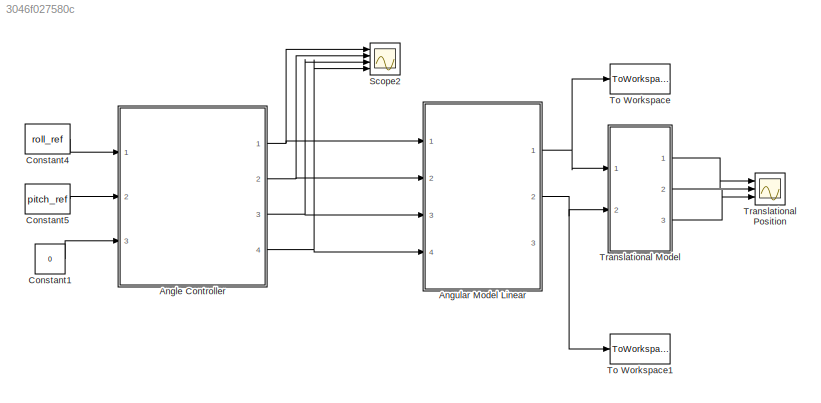
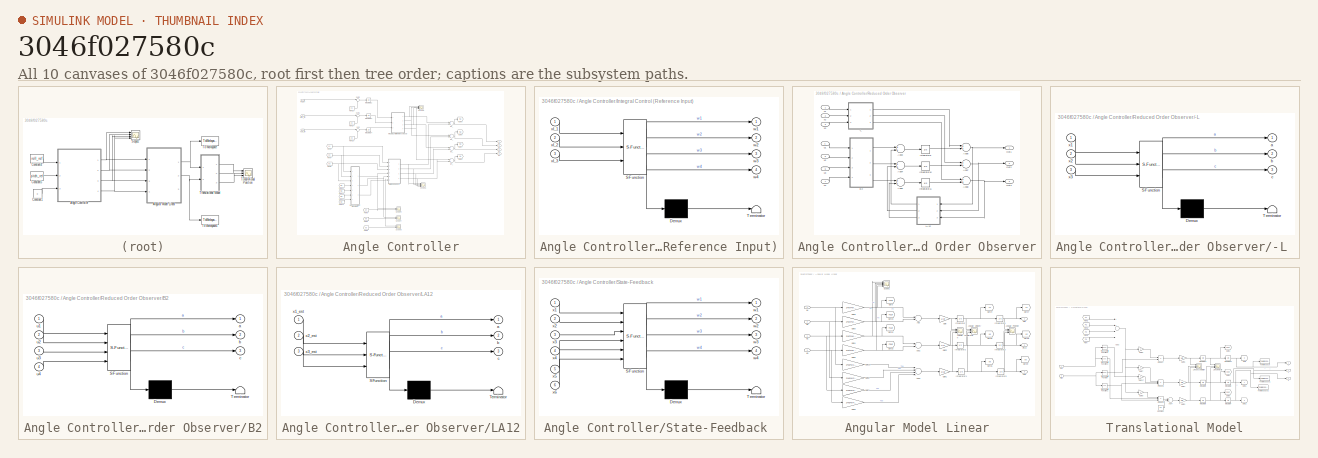
[diagram: thumbnail index - all 10 canvases of the model, root first then tree order]
MODEL slx_3046f027580c
KIND model
CONFIG AbsTol = auto
CONFIG FixedStep = auto
CONFIG MaxStep = auto
CONFIG MinStep = auto
CONFIG RelTol = 1e-3
CONFIG SampleTimeConstraint = Unconstrained
CONFIG Solver = VariableStepAuto
CONFIG SolverMode = Auto
CONFIG SolverName = VariableStepAuto
CONFIG StartTime = 0.0
CONFIG StopTime = 10
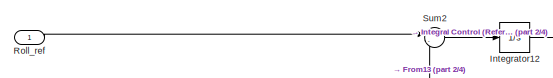
[diagram: Angle Controller - part 1/4, top left region]
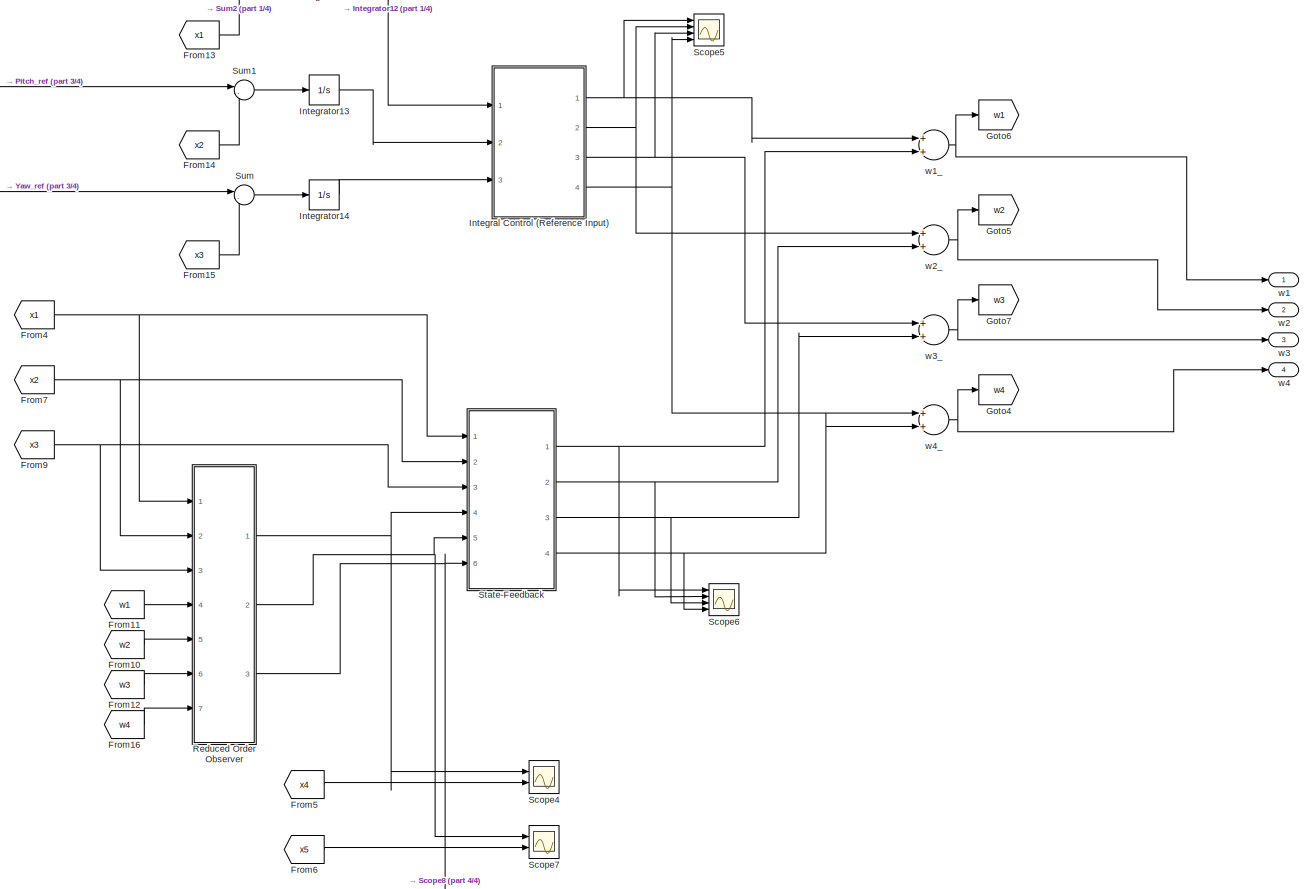
[diagram: Angle Controller - part 2/4, most of the canvas]
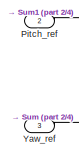
[diagram: Angle Controller - part 3/4, top left region]
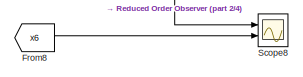
[diagram: Angle Controller - part 4/4, bottom center region]
BLOCK [SubSystem] Angle Controller
  Ports = [3, 4]
  RequestExecContextInheritance = off
  Variant = off
BLOCK [From] Angle Controller/From10
  GotoTag = w2
BLOCK [From] Angle Controller/From11
  GotoTag = w1
BLOCK [From] Angle Controller/From12
  GotoTag = w3
BLOCK [From] Angle Controller/From13
  GotoTag = x1
  TagVisibility = global
BLOCK [From] Angle Controller/From14
  GotoTag = x2
  TagVisibility = global
BLOCK [From] Angle Controller/From15
  GotoTag = x3
  TagVisibility = global
BLOCK [From] Angle Controller/From16
  GotoTag = w4
BLOCK [From] Angle Controller/From4
  GotoTag = x1
  TagVisibility = global
BLOCK [From] Angle Controller/From5
  GotoTag = x4
  TagVisibility = global
BLOCK [From] Angle Controller/From6
  GotoTag = x5
  TagVisibility = global
BLOCK [From] Angle Controller/From7
  GotoTag = x2
  TagVisibility = global
BLOCK [From] Angle Controller/From8
  GotoTag = x6
  TagVisibility = global
BLOCK [From] Angle Controller/From9
  GotoTag = x3
  TagVisibility = global
BLOCK [Goto] Angle Controller/Goto4
  GotoTag = w4
BLOCK [Goto] Angle Controller/Goto5
  GotoTag = w2
BLOCK [Goto] Angle Controller/Goto6
  GotoTag = w1
BLOCK [Goto] Angle Controller/Goto7
  GotoTag = w3
BLOCK [SubSystem] Angle Controller/Integral Control (Reference Input)
  ErrorFcn = Stateflow.Translate.translate
  PermitHierarchicalResolution = ExplicitOnly
  Ports = [3, 4]
  RequestExecContextInheritance = off
  SFBlockType = MATLAB Function
  TreatAsAtomicUnit = on
  Variant = off
BLOCK [Demux] Angle Controller/Integral Control (Reference Input)/ Demux 
  Outputs = 1
  Ports = [1, 1]
BLOCK [S-Function] Angle Controller/Integral Control (Reference Input)/ SFunction 
  EnableBusSupport = on
  FunctionName = sf_sfun
  Parameters = FI
  PortCounts = [3 5]
  Ports = [3, 5]
  SFunctionDeploymentMode = off
  Tag = Stateflow S-Function attitudeControllerSim 2
BLOCK [Terminator] Angle Controller/Integral Control (Reference Input)/ Terminator 
BLOCK [Outport] Angle Controller/Integral Control (Reference Input)/w1
  IconDisplay = Port number
BLOCK [Outport] Angle Controller/Integral Control (Reference Input)/w2
  IconDisplay = Port number
  Port = 2
BLOCK [Outport] Angle Controller/Integral Control (Reference Input)/w3
  IconDisplay = Port number
  Port = 3
BLOCK [Outport] Angle Controller/Integral Control (Reference Input)/w4
  IconDisplay = Port number
  Port = 4
BLOCK [Inport] Angle Controller/Integral Control (Reference Input)/xI_1
  IconDisplay = Port number
BLOCK [Inport] Angle Controller/Integral Control (Reference Input)/xI_2
  IconDisplay = Port number
  Port = 2
BLOCK [Inport] Angle Controller/Integral Control (Reference Input)/xI_3
  IconDisplay = Port number
  Port = 3
BLOCK [Integrator] Angle Controller/Integrator12
  Ports = [1, 1]
BLOCK [Integrator] Angle Controller/Integrator13
  Ports = [1, 1]
BLOCK [Integrator] Angle Controller/Integrator14
  Ports = [1, 1]
BLOCK [Inport] Angle Controller/Pitch_ref
  IconDisplay = Port number
  Port = 2
BLOCK [SubSystem] Angle Controller/Reduced Order Observer
  Ports = [7, 3]
  RequestExecContextInheritance = off
  Variant = off
BLOCK [SubSystem] Angle Controller/Reduced Order Observer/-L 
  ErrorFcn = Stateflow.Translate.translate
  PermitHierarchicalResolution = ExplicitOnly
  Ports = [3, 3]
  RequestExecContextInheritance = off
  SFBlockType = MATLAB Function
  TreatAsAtomicUnit = on
  Variant = off
BLOCK [Demux] Angle Controller/Reduced Order Observer/-L / Demux 
  Outputs = 1
  Ports = [1, 1]
BLOCK [S-Function] Angle Controller/Reduced Order Observer/-L / SFunction 
  EnableBusSupport = on
  FunctionName = sf_sfun
  Parameters = Lobs
  PortCounts = [3 4]
  Ports = [3, 4]
  SFunctionDeploymentMode = off
  Tag = Stateflow S-Function attitudeControllerSim 3
BLOCK [Terminator] Angle Controller/Reduced Order Observer/-L / Terminator 
BLOCK [Outport] Angle Controller/Reduced Order Observer/-L /a
  IconDisplay = Port number
BLOCK [Outport] Angle Controller/Reduced Order Observer/-L /b
  IconDisplay = Port number
  Port = 2
BLOCK [Outport] Angle Controller/Reduced Order Observer/-L /c
  IconDisplay = Port number
  Port = 3
BLOCK [Inport] Angle Controller/Reduced Order Observer/-L /x1
  IconDisplay = Port number
BLOCK [Inport] Angle Controller/Reduced Order Observer/-L /x2
  IconDisplay = Port number
  Port = 2
BLOCK [Inport] Angle Controller/Reduced Order Observer/-L /x3
  IconDisplay = Port number
  Port = 3
BLOCK [Sum] Angle Controller/Reduced Order Observer/Add3
  InputSameDT = off
  Inputs = 2
  OutDataTypeStr = Inherit: Inherit via internal rule
  Ports = [2, 1]
  SaturateOnIntegerOverflow = off
BLOCK [Sum] Angle Controller/Reduced Order Observer/Add4
  InputSameDT = off
  Inputs = 2
  OutDataTypeStr = Inherit: Inherit via internal rule
  Ports = [2, 1]
  SaturateOnIntegerOverflow = off
BLOCK [Sum] Angle Controller/Reduced Order Observer/Add5
  InputSameDT = off
  Inputs = 2
  OutDataTypeStr = Inherit: Inherit via internal rule
  Ports = [2, 1]
  SaturateOnIntegerOverflow = off
BLOCK [Sum] Angle Controller/Reduced Order Observer/Add6
  InputSameDT = off
  Inputs = 2
  OutDataTypeStr = Inherit: Inherit via internal rule
  Ports = [2, 1]
  SaturateOnIntegerOverflow = off
BLOCK [Sum] Angle Controller/Reduced Order Observer/Add7
  InputSameDT = off
  Inputs = 2
  OutDataTypeStr = Inherit: Inherit via internal rule
  Ports = [2, 1]
  SaturateOnIntegerOverflow = off
BLOCK [Sum] Angle Controller/Reduced Order Observer/Add8
  InputSameDT = off
  Inputs = 2
  OutDataTypeStr = Inherit: Inherit via internal rule
  Ports = [2, 1]
  SaturateOnIntegerOverflow = off
BLOCK [SubSystem] Angle Controller/Reduced Order Observer/B2
  ErrorFcn = Stateflow.Translate.translate
  PermitHierarchicalResolution = ExplicitOnly
  Ports = [4, 3]
  RequestExecContextInheritance = off
  SFBlockType = MATLAB Function
  TreatAsAtomicUnit = on
  Variant = off
BLOCK [Demux] Angle Controller/Reduced Order Observer/B2/ Demux 
  Outputs = 1
  Ports = [1, 1]
BLOCK [S-Function] Angle Controller/Reduced Order Observer/B2/ SFunction 
  EnableBusSupport = on
  FunctionName = sf_sfun
  Parameters = B2
  PortCounts = [4 4]
  Ports = [4, 4]
  SFunctionDeploymentMode = off
  Tag = Stateflow S-Function attitudeControllerSim 4
BLOCK [Terminator] Angle Controller/Reduced Order Observer/B2/ Terminator 
BLOCK [Outport] Angle Controller/Reduced Order Observer/B2/a
  IconDisplay = Port number
BLOCK [Outport] Angle Controller/Reduced Order Observer/B2/b
  IconDisplay = Port number
  Port = 2
BLOCK [Outport] Angle Controller/Reduced Order Observer/B2/c
  IconDisplay = Port number
  Port = 3
BLOCK [Inport] Angle Controller/Reduced Order Observer/B2/u1
  IconDisplay = Port number
BLOCK [Inport] Angle Controller/Reduced Order Observer/B2/u2
  IconDisplay = Port number
  Port = 2
BLOCK [Inport] Angle Controller/Reduced Order Observer/B2/u3
  IconDisplay = Port number
  Port = 3
BLOCK [Inport] Angle Controller/Reduced Order Observer/B2/u4
  IconDisplay = Port number
  Port = 4
BLOCK [Integrator] Angle Controller/Reduced Order Observer/Integrator10
  Ports = [1, 1]
BLOCK [Integrator] Angle Controller/Reduced Order Observer/Integrator11
  Ports = [1, 1]
BLOCK [Integrator] Angle Controller/Reduced Order Observer/Integrator9
  Ports = [1, 1]
BLOCK [SubSystem] Angle Controller/Reduced Order Observer/LA12
  ErrorFcn = Stateflow.Translate.translate
  PermitHierarchicalResolution = ExplicitOnly
  Ports = [3, 3]
  RequestExecContextInheritance = off
  SFBlockType = MATLAB Function
  TreatAsAtomicUnit = on
  Variant = off
BLOCK [Demux] Angle Controller/Reduced Order Observer/LA12/ Demux 
  Outputs = 1
  Ports = [1, 1]
BLOCK [S-Function] Angle Controller/Reduced Order Observer/LA12/ SFunction 
  EnableBusSupport = on
  FunctionName = sf_sfun
  Parameters = A12,Lobs
  PortCounts = [3 4]
  Ports = [3, 4]
  SFunctionDeploymentMode = off
  Tag = Stateflow S-Function attitudeControllerSim 5
BLOCK [Terminator] Angle Controller/Reduced Order Observer/LA12/ Terminator 
BLOCK [Outport] Angle Controller/Reduced Order Observer/LA12/a
  IconDisplay = Port number
BLOCK [Outport] Angle Controller/Reduced Order Observer/LA12/b
  IconDisplay = Port number
  Port = 2
BLOCK [Outport] Angle Controller/Reduced Order Observer/LA12/c
  IconDisplay = Port number
  Port = 3
BLOCK [Inport] Angle Controller/Reduced Order Observer/LA12/x1_est
  IconDisplay = Port number
BLOCK [Inport] Angle Controller/Reduced Order Observer/LA12/x2_est
  IconDisplay = Port number
  Port = 2
BLOCK [Inport] Angle Controller/Reduced Order Observer/LA12/x3_est
  IconDisplay = Port number
  Port = 3
BLOCK [Outport] Angle Controller/Reduced Order Observer/Out1
  IconDisplay = Port number
BLOCK [Outport] Angle Controller/Reduced Order Observer/Out2
  IconDisplay = Port number
  Port = 2
BLOCK [Outport] Angle Controller/Reduced Order Observer/Out3
  IconDisplay = Port number
  Port = 3
BLOCK [Inport] Angle Controller/Reduced Order Observer/u1
  IconDisplay = Port number
  Port = 4
BLOCK [Inport] Angle Controller/Reduced Order Observer/u2
  IconDisplay = Port number
  Port = 5
BLOCK [Inport] Angle Controller/Reduced Order Observer/u3
  IconDisplay = Port number
  Port = 6
BLOCK [Inport] Angle Controller/Reduced Order Observer/u4
  IconDisplay = Port number
  Port = 7
BLOCK [Inport] Angle Controller/Reduced Order Observer/x1
  IconDisplay = Port number
BLOCK [Inport] Angle Controller/Reduced Order Observer/x2
  IconDisplay = Port number
  Port = 2
BLOCK [Inport] Angle Controller/Reduced Order Observer/x3
  IconDisplay = Port number
  Port = 3
BLOCK [Inport] Angle Controller/Roll_ref
  IconDisplay = Port number
BLOCK [Scope] Angle Controller/Scope4
  NumInputPorts = 2
  Ports = [2]
  ScopeSpecificationString = Simulink.scopes.TimeScopeBlockCfg('CurrentConfiguration', extmgr.ConfigurationSet(extmgr.Configuration('Core','General UI',true),extmgr.Configuration('Core','Source UI',true),extmgr.Configuration('Sources','WiredSimulink',true,'DataLoggingVariableName','ScopeData7'),extmgr.Configuration('Visuals','Time Domain',true,'SerializedDisplays',{struct('MinYLimReal','-0.08424','MaxYLimReal','0.75814','YLab...<+1421ch>
BLOCK [Scope] Angle Controller/Scope5
  NumInputPorts = 4
  Ports = [4]
  ScopeSpecificationString = Simulink.scopes.TimeScopeBlockCfg('CurrentConfiguration', extmgr.ConfigurationSet(extmgr.Configuration('Core','General UI',true),extmgr.Configuration('Core','Source UI',true),extmgr.Configuration('Sources','WiredSimulink',true,'DataLoggingVariableName','ScopeData8'),extmgr.Configuration('Visuals','Time Domain',true,'SerializedDisplays',{struct('MinYLimReal','-1.00000','MaxYLimReal','1.00000','YLab...<+1572ch>
BLOCK [Scope] Angle Controller/Scope6
  NumInputPorts = 4
  Ports = [4]
  ScopeSpecificationString = C++SS(StrPVP('SaveName','ScopeData9'),StrPVP('LimitDataPoints','on'),StrPVP('DataFormat','Array'),StrPVP('Decimation','1'),StrPVP('BlockParamSampleInput','off'))
BLOCK [Scope] Angle Controller/Scope7
  NumInputPorts = 2
  Ports = [2]
  ScopeSpecificationString = C++SS(StrPVP('SaveName','ScopeData10'),StrPVP('LimitDataPoints','on'),StrPVP('DataFormat','Array'),StrPVP('Decimation','1'),StrPVP('BlockParamSampleInput','off'))
BLOCK [Scope] Angle Controller/Scope8
  NumInputPorts = 2
  Ports = [2]
  ScopeSpecificationString = C++SS(StrPVP('SaveName','ScopeData11'),StrPVP('LimitDataPoints','on'),StrPVP('DataFormat','Array'),StrPVP('Decimation','1'),StrPVP('BlockParamSampleInput','off'))
BLOCK [SubSystem] Angle Controller/State-Feedback 
  ErrorFcn = Stateflow.Translate.translate
  PermitHierarchicalResolution = ExplicitOnly
  Ports = [6, 4]
  RequestExecContextInheritance = off
  SFBlockType = MATLAB Function
  TreatAsAtomicUnit = on
  Variant = off
BLOCK [Demux] Angle Controller/State-Feedback / Demux 
  Outputs = 1
  Ports = [1, 1]
BLOCK [S-Function] Angle Controller/State-Feedback / SFunction 
  EnableBusSupport = on
  FunctionName = sf_sfun
  Parameters = F
  PortCounts = [6 5]
  Ports = [6, 5]
  SFunctionDeploymentMode = off
  Tag = Stateflow S-Function attitudeControllerSim 1
BLOCK [Terminator] Angle Controller/State-Feedback / Terminator 
BLOCK [Outport] Angle Controller/State-Feedback /w1
  IconDisplay = Port number
BLOCK [Outport] Angle Controller/State-Feedback /w2
  IconDisplay = Port number
  Port = 2
BLOCK [Outport] Angle Controller/State-Feedback /w3
  IconDisplay = Port number
  Port = 3
BLOCK [Outport] Angle Controller/State-Feedback /w4
  IconDisplay = Port number
  Port = 4
BLOCK [Inport] Angle Controller/State-Feedback /x1
  IconDisplay = Port number
BLOCK [Inport] Angle Controller/State-Feedback /x2
  IconDisplay = Port number
  Port = 2
BLOCK [Inport] Angle Controller/State-Feedback /x3
  IconDisplay = Port number
  Port = 3
BLOCK [Inport] Angle Controller/State-Feedback /x4
  IconDisplay = Port number
  Port = 4
BLOCK [Inport] Angle Controller/State-Feedback /x5
  IconDisplay = Port number
  Port = 5
BLOCK [Inport] Angle Controller/State-Feedback /x6
  IconDisplay = Port number
  Port = 6
BLOCK [Sum] Angle Controller/Sum
  IconShape = round
  InputSameDT = off
  Inputs = |-+
  OutDataTypeStr = Inherit: Inherit via internal rule
  Ports = [2, 1]
  SaturateOnIntegerOverflow = off
BLOCK [Sum] Angle Controller/Sum1
  IconShape = round
  InputSameDT = off
  Inputs = |-+
  OutDataTypeStr = Inherit: Inherit via internal rule
  Ports = [2, 1]
  SaturateOnIntegerOverflow = off
BLOCK [Sum] Angle Controller/Sum2
  IconShape = round
  InputSameDT = off
  Inputs = |-+
  OutDataTypeStr = Inherit: Inherit via internal rule
  Ports = [2, 1]
  SaturateOnIntegerOverflow = off
BLOCK [Inport] Angle Controller/Yaw_ref
  IconDisplay = Port number
  Port = 3
BLOCK [Outport] Angle Controller/w1
  IconDisplay = Port number
BLOCK [Sum] Angle Controller/w1_
  InputSameDT = off
  OutDataTypeStr = Inherit: Inherit via internal rule
  Ports = [2, 1]
  SaturateOnIntegerOverflow = off
BLOCK [Outport] Angle Controller/w2
  IconDisplay = Port number
  Port = 2
BLOCK [Sum] Angle Controller/w2_
  InputSameDT = off
  OutDataTypeStr = Inherit: Inherit via internal rule
  Ports = [2, 1]
  SaturateOnIntegerOverflow = off
BLOCK [Outport] Angle Controller/w3
  IconDisplay = Port number
  Port = 3
BLOCK [Sum] Angle Controller/w3_
  InputSameDT = off
  OutDataTypeStr = Inherit: Inherit via internal rule
  Ports = [2, 1]
  SaturateOnIntegerOverflow = off
BLOCK [Outport] Angle Controller/w4
  IconDisplay = Port number
  Port = 4
BLOCK [Sum] Angle Controller/w4_
  InputSameDT = off
  OutDataTypeStr = Inherit: Inherit via internal rule
  Ports = [2, 1]
  SaturateOnIntegerOverflow = off
BLOCK [SubSystem] Angular Model Linear
  Ports = [4, 3]
  RequestExecContextInheritance = off
  Variant = off
BLOCK [Sum] Angular Model Linear/Add
  InputSameDT = off
  Inputs = +-
  OutDataTypeStr = Inherit: Inherit via internal rule
  Ports = [2, 1]
  SaturateOnIntegerOverflow = off
BLOCK [Sum] Angular Model Linear/Add1
  InputSameDT = off
  Inputs = +-
  OutDataTypeStr = Inherit: Inherit via internal rule
  Ports = [2, 1]
  SaturateOnIntegerOverflow = off
BLOCK [Sum] Angular Model Linear/Add2
  InputSameDT = off
  Inputs = --++
  OutDataTypeStr = Inherit: Inherit via internal rule
  Ports = [4, 1]
  SaturateOnIntegerOverflow = off
BLOCK [Scope] Angular Model Linear/Angular Acceleration
  NumInputPorts = 3
  Ports = [3]
  ScopeSpecificationString = Simulink.scopes.TimeScopeBlockCfg('CurrentConfiguration', extmgr.ConfigurationSet(extmgr.Configuration('Core','General UI',true),extmgr.Configuration('Core','Source UI',true),extmgr.Configuration('Sources','WiredSimulink',true,'DataLoggingVariableName','ScopeData3','DataLoggingLimitDataPoints',true,'DataLoggingSaveFormat','Array','DataLoggingDecimation','1','DataLoggingDecimateData',true),extmgr.C...<+1531ch>
BLOCK [Scope] Angular Model Linear/Angular Position
  NumInputPorts = 3
  Ports = [3]
  ScopeSpecificationString = Simulink.scopes.TimeScopeBlockCfg('CurrentConfiguration', extmgr.ConfigurationSet(extmgr.Configuration('Core','General UI',true),extmgr.Configuration('Core','Source UI',true),extmgr.Configuration('Sources','WiredSimulink',true,'DataLoggingVariableName','ScopeData1'),extmgr.Configuration('Visuals','Time Domain',true,'SerializedDisplays',{struct('MinYLimReal','-0.12626','MaxYLimReal','1.12514','YLab...<+1442ch>
BLOCK [Scope] Angular Model Linear/Angular Velocity
  NumInputPorts = 3
  Ports = [3]
  ScopeSpecificationString = Simulink.scopes.TimeScopeBlockCfg('CurrentConfiguration', extmgr.ConfigurationSet(extmgr.Configuration('Core','General UI',true),extmgr.Configuration('Core','Source UI',true),extmgr.Configuration('Sources','WiredSimulink',true,'DataLoggingVariableName','ScopeData2','DataLoggingLimitDataPoints',true,'DataLoggingSaveFormat','Array','DataLoggingDecimation','1','DataLoggingDecimateData',true),extmgr.C...<+1624ch>
BLOCK [Gain] Angular Model Linear/Gain
  Gain = L/Jx
  OutDataTypeStr = Inherit: Inherit via internal rule
  ParamDataTypeStr = Inherit: Inherit via internal rule
  SaturateOnIntegerOverflow = off
BLOCK [Gain] Angular Model Linear/Gain1
  Gain = 1/Jz
  OutDataTypeStr = Inherit: Inherit via internal rule
  ParamDataTypeStr = Inherit: Inherit via internal rule
  SaturateOnIntegerOverflow = off
BLOCK [Gain] Angular Model Linear/Gain10
  Gain = 2*kd*w1_bar
  OutDataTypeStr = Inherit: Inherit via internal rule
  ParamDataTypeStr = Inherit: Inherit via internal rule
  SaturateOnIntegerOverflow = off
BLOCK [Gain] Angular Model Linear/Gain2
  Gain = L/Jy
  OutDataTypeStr = Inherit: Inherit via internal rule
  ParamDataTypeStr = Inherit: Inherit via internal rule
  SaturateOnIntegerOverflow = off
BLOCK [Gain] Angular Model Linear/Gain3
  Gain = 2*kth*w2_bar
  OutDataTypeStr = Inherit: Inherit via internal rule
  ParamDataTypeStr = Inherit: Inherit via internal rule
  SaturateOnIntegerOverflow = off
BLOCK [Gain] Angular Model Linear/Gain4
  Gain = 2*kth*w1_bar
  OutDataTypeStr = Inherit: Inherit via internal rule
  ParamDataTypeStr = Inherit: Inherit via internal rule
  SaturateOnIntegerOverflow = off
BLOCK [Gain] Angular Model Linear/Gain5
  Gain = 2*kth*w3_bar
  OutDataTypeStr = Inherit: Inherit via internal rule
  ParamDataTypeStr = Inherit: Inherit via internal rule
  SaturateOnIntegerOverflow = off
BLOCK [Gain] Angular Model Linear/Gain6
  Gain = 2*kd*w2_bar
  OutDataTypeStr = Inherit: Inherit via internal rule
  ParamDataTypeStr = Inherit: Inherit via internal rule
  SaturateOnIntegerOverflow = off
BLOCK [Gain] Angular Model Linear/Gain7
  Gain = 2*kd*w3_bar
  OutDataTypeStr = Inherit: Inherit via internal rule
  ParamDataTypeStr = Inherit: Inherit via internal rule
  SaturateOnIntegerOverflow = off
BLOCK [Gain] Angular Model Linear/Gain8
  Gain = 2*kd*w4_bar
  OutDataTypeStr = Inherit: Inherit via internal rule
  ParamDataTypeStr = Inherit: Inherit via internal rule
  SaturateOnIntegerOverflow = off
BLOCK [Gain] Angular Model Linear/Gain9
  Gain = 2*kth*w4_bar
  OutDataTypeStr = Inherit: Inherit via internal rule
  ParamDataTypeStr = Inherit: Inherit via internal rule
  SaturateOnIntegerOverflow = off
BLOCK [Goto] Angular Model Linear/Goto
  GotoTag = F4Lin
  TagVisibility = global
BLOCK [Goto] Angular Model Linear/Goto1
  GotoTag = F1Lin
  TagVisibility = global
BLOCK [Goto] Angular Model Linear/Goto2
  GotoTag = F3Lin
  TagVisibility = global
BLOCK [Goto] Angular Model Linear/Goto3
  GotoTag = F2Lin
  TagVisibility = global
BLOCK [Goto] Angular Model Linear/Goto4
  GotoTag = x4
  TagVisibility = global
BLOCK [Goto] Angular Model Linear/Goto5
  GotoTag = x5
  TagVisibility = global
BLOCK [Goto] Angular Model Linear/Goto6
  GotoTag = x6
  TagVisibility = global
BLOCK [Goto] Angular Model Linear/Goto7
  GotoTag = x1
  TagVisibility = global
BLOCK [Goto] Angular Model Linear/Goto8
  GotoTag = x2
  TagVisibility = global
BLOCK [Goto] Angular Model Linear/Goto9
  GotoTag = x3
  TagVisibility = global
BLOCK [Integrator] Angular Model Linear/Integrator
  Ports = [1, 1]
BLOCK [Integrator] Angular Model Linear/Integrator1
  Ports = [1, 1]
BLOCK [Integrator] Angular Model Linear/Integrator2
  Ports = [1, 1]
BLOCK [Integrator] Angular Model Linear/Integrator3
  Ports = [1, 1]
BLOCK [Integrator] Angular Model Linear/Integrator4
  Ports = [1, 1]
BLOCK [Integrator] Angular Model Linear/Integrator5
  Ports = [1, 1]
BLOCK [Outport] Angular Model Linear/Pitch
  IconDisplay = Port number
  Port = 2
BLOCK [Outport] Angular Model Linear/Roll
  IconDisplay = Port number
BLOCK [Scope] Angular Model Linear/Scope1
  NumInputPorts = 4
  Ports = [4]
  ScopeSpecificationString = Simulink.scopes.TimeScopeBlockCfg('CurrentConfiguration', extmgr.ConfigurationSet(extmgr.Configuration('Core','General UI',true),extmgr.Configuration('Core','Source UI',true),extmgr.Configuration('Sources','WiredSimulink',true),extmgr.Configuration('Visuals','Time Domain',true,'SerializedDisplays',{struct('MinYLimReal','-1.00000','MaxYLimReal','1.00000','YLabelReal','','MinYLimMag','0.00000','MaxY...<+1435ch>
BLOCK [Outport] Angular Model Linear/Yaw
  IconDisplay = Port number
  Port = 3
BLOCK [Inport] Angular Model Linear/w1
  IconDisplay = Port number
BLOCK [Inport] Angular Model Linear/w2
  IconDisplay = Port number
  Port = 2
BLOCK [Inport] Angular Model Linear/w3
  IconDisplay = Port number
  Port = 3
BLOCK [Inport] Angular Model Linear/w4
  IconDisplay = Port number
  Port = 4
BLOCK [Constant] Constant1
  Value = 0
BLOCK [Constant] Constant4
  Value = roll_ref
BLOCK [Constant] Constant5
  Value = pitch_ref
BLOCK [Scope] Scope2
  NumInputPorts = 4
  Ports = [4]
  ScopeSpecificationString = Simulink.scopes.TimeScopeBlockCfg('CurrentConfiguration', extmgr.ConfigurationSet(extmgr.Configuration('Core','General UI',true),extmgr.Configuration('Core','Source UI',true),extmgr.Configuration('Sources','WiredSimulink',true,'DataLoggingVariableName','ScopeData2'),extmgr.Configuration('Visuals','Time Domain',true,'SerializedDisplays',{struct('MinYLimReal','-13089.44079','MaxYLimReal','12803.7927...<+1570ch>
BLOCK [ToWorkspace] To Workspace
  FixptAsFi = on
  MaxDataPoints = inf
  Ports = [1]
  SampleTime = -1
  Save2DSignal = 3-D array (concatenate along third dimension)
  SaveFormat = Timeseries
  VariableName = roll
BLOCK [ToWorkspace] To Workspace1
  FixptAsFi = on
  MaxDataPoints = inf
  Ports = [1]
  SampleTime = -1
  Save2DSignal = 3-D array (concatenate along third dimension)
  SaveFormat = Timeseries
  VariableName = pitch
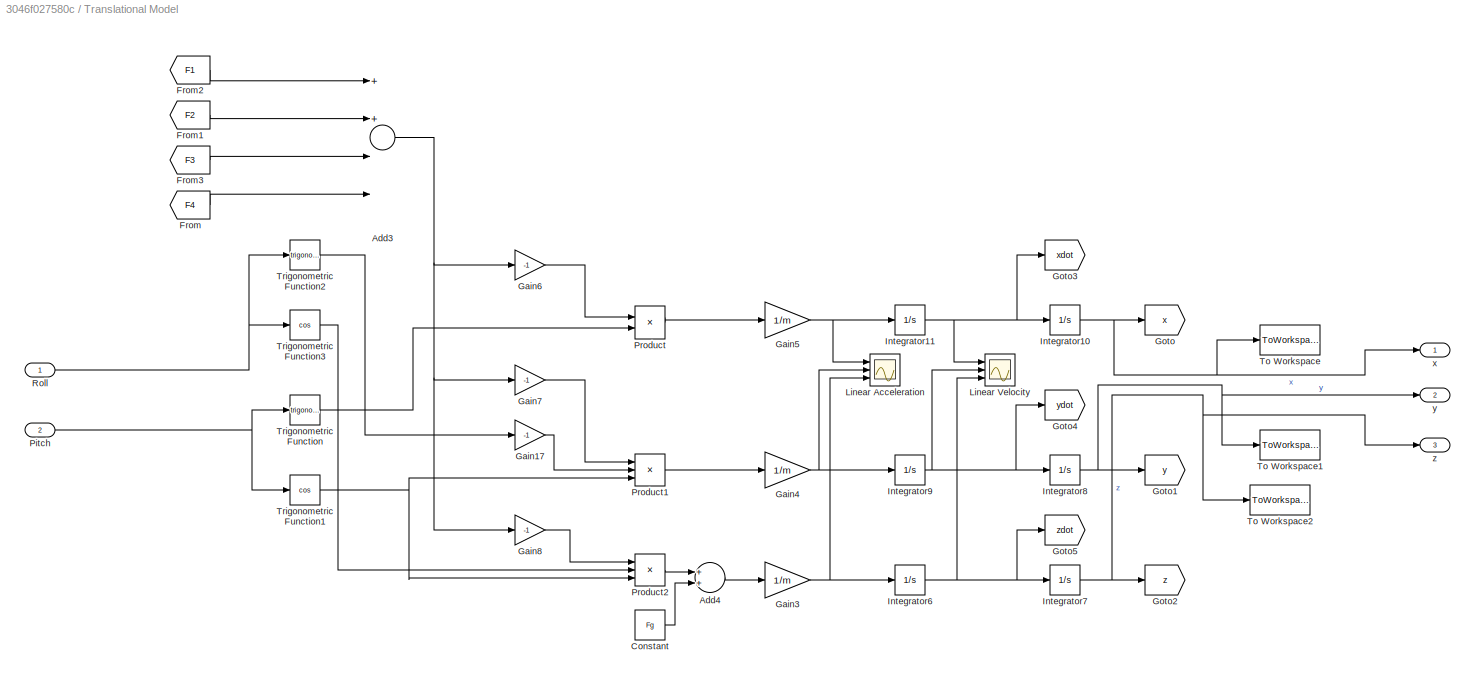
BLOCK [SubSystem] Translational Model
  Ports = [2, 3]
  RequestExecContextInheritance = off
  Variant = off
BLOCK [Sum] Translational Model/Add3
  InputSameDT = off
  Inputs = 4
  OutDataTypeStr = Inherit: Inherit via internal rule
  Ports = [4, 1]
  SaturateOnIntegerOverflow = off
BLOCK [Sum] Translational Model/Add4
  InputSameDT = off
  Inputs = 2
  OutDataTypeStr = Inherit: Inherit via internal rule
  Ports = [2, 1]
  SaturateOnIntegerOverflow = off
BLOCK [Constant] Translational Model/Constant
  Value = Fg
BLOCK [From] Translational Model/From
  GotoTag = F4
BLOCK [From] Translational Model/From1
  GotoTag = F2
BLOCK [From] Translational Model/From2
  GotoTag = F1
BLOCK [From] Translational Model/From3
  GotoTag = F3
BLOCK [Gain] Translational Model/Gain17
  Gain = -1
  OutDataTypeStr = Inherit: Inherit via internal rule
  ParamDataTypeStr = Inherit: Inherit via internal rule
  SaturateOnIntegerOverflow = off
BLOCK [Gain] Translational Model/Gain3
  Gain = 1/m
  OutDataTypeStr = Inherit: Inherit via internal rule
  ParamDataTypeStr = Inherit: Inherit via internal rule
  SaturateOnIntegerOverflow = off
BLOCK [Gain] Translational Model/Gain4
  Gain = 1/m
  OutDataTypeStr = Inherit: Inherit via internal rule
  ParamDataTypeStr = Inherit: Inherit via internal rule
  SaturateOnIntegerOverflow = off
BLOCK [Gain] Translational Model/Gain5
  Gain = 1/m
  OutDataTypeStr = Inherit: Inherit via internal rule
  ParamDataTypeStr = Inherit: Inherit via internal rule
  SaturateOnIntegerOverflow = off
BLOCK [Gain] Translational Model/Gain6
  Gain = -1
  OutDataTypeStr = Inherit: Inherit via internal rule
  ParamDataTypeStr = Inherit: Inherit via internal rule
  SaturateOnIntegerOverflow = off
BLOCK [Gain] Translational Model/Gain7
  Gain = -1
  OutDataTypeStr = Inherit: Inherit via internal rule
  ParamDataTypeStr = Inherit: Inherit via internal rule
  SaturateOnIntegerOverflow = off
BLOCK [Gain] Translational Model/Gain8
  Gain = -1
  OutDataTypeStr = Inherit: Inherit via internal rule
  ParamDataTypeStr = Inherit: Inherit via internal rule
  SaturateOnIntegerOverflow = off
BLOCK [Goto] Translational Model/Goto
  GotoTag = x
  TagVisibility = global
BLOCK [Goto] Translational Model/Goto1
  GotoTag = y
  TagVisibility = global
BLOCK [Goto] Translational Model/Goto2
  GotoTag = z
  TagVisibility = global
BLOCK [Goto] Translational Model/Goto3
  GotoTag = xdot
  TagVisibility = global
BLOCK [Goto] Translational Model/Goto4
  GotoTag = ydot
  TagVisibility = global
BLOCK [Goto] Translational Model/Goto5
  GotoTag = zdot
  TagVisibility = global
BLOCK [Integrator] Translational Model/Integrator10
  Ports = [1, 1]
BLOCK [Integrator] Translational Model/Integrator11
  Ports = [1, 1]
BLOCK [Integrator] Translational Model/Integrator6
  Ports = [1, 1]
BLOCK [Integrator] Translational Model/Integrator7
  Ports = [1, 1]
BLOCK [Integrator] Translational Model/Integrator8
  Ports = [1, 1]
BLOCK [Integrator] Translational Model/Integrator9
  Ports = [1, 1]
BLOCK [Scope] Translational Model/Linear Acceleration
  NumInputPorts = 3
  Ports = [3]
  ScopeSpecificationString = Simulink.scopes.TimeScopeBlockCfg('CurrentConfiguration', extmgr.ConfigurationSet(extmgr.Configuration('Core','General UI',true),extmgr.Configuration('Core','Source UI',true),extmgr.Configuration('Sources','WiredSimulink',true,'DataLoggingVariableName','ScopeData6','DataLoggingLimitDataPoints',true,'DataLoggingSaveFormat','Array','DataLoggingDecimation','1','DataLoggingDecimateData',true),extmgr.C...<+1603ch>
BLOCK [Scope] Translational Model/Linear Velocity
  NumInputPorts = 3
  Ports = [3]
  ScopeSpecificationString = Simulink.scopes.TimeScopeBlockCfg('CurrentConfiguration', extmgr.ConfigurationSet(extmgr.Configuration('Core','General UI',true),extmgr.Configuration('Core','Source UI',true),extmgr.Configuration('Sources','WiredSimulink',true,'DataLoggingVariableName','ScopeData4','DataLoggingSaveFormat','Array','DataLoggingDecimation','1','DataLoggingDecimateData',true),extmgr.Configuration('Visuals','Time Domai...<+1598ch>
BLOCK [Inport] Translational Model/Pitch
  IconDisplay = Port number
  Port = 2
BLOCK [Product] Translational Model/Product
  InputSameDT = off
  OutDataTypeStr = Inherit: Inherit via internal rule
  Ports = [2, 1]
  RndMeth = Floor
  SaturateOnIntegerOverflow = off
BLOCK [Product] Translational Model/Product1
  InputSameDT = off
  Inputs = 3
  OutDataTypeStr = Inherit: Inherit via internal rule
  Ports = [3, 1]
  RndMeth = Floor
  SaturateOnIntegerOverflow = off
BLOCK [Product] Translational Model/Product2
  InputSameDT = off
  Inputs = 3
  OutDataTypeStr = Inherit: Inherit via internal rule
  Ports = [3, 1]
  RndMeth = Floor
  SaturateOnIntegerOverflow = off
BLOCK [Inport] Translational Model/Roll
  IconDisplay = Port number
BLOCK [ToWorkspace] Translational Model/To Workspace
  FixptAsFi = on
  MaxDataPoints = inf
  Ports = [1]
  SampleTime = -1
  Save2DSignal = 3-D array (concatenate along third dimension)
  VariableName = posx
BLOCK [ToWorkspace] Translational Model/To Workspace1
  FixptAsFi = on
  MaxDataPoints = inf
  Ports = [1]
  SampleTime = -1
  Save2DSignal = 3-D array (concatenate along third dimension)
  VariableName = posy
BLOCK [ToWorkspace] Translational Model/To Workspace2
  FixptAsFi = on
  MaxDataPoints = inf
  Ports = [1]
  SampleTime = -1
  Save2DSignal = 3-D array (concatenate along third dimension)
  VariableName = posz
BLOCK [Trigonometry] Translational Model/Trigonometric Function
  Ports = [1, 1]
BLOCK [Trigonometry] Translational Model/Trigonometric Function1
  Operator = cos
  Ports = [1, 1]
BLOCK [Trigonometry] Translational Model/Trigonometric Function2
  Ports = [1, 1]
BLOCK [Trigonometry] Translational Model/Trigonometric Function3
  Operator = cos
  Ports = [1, 1]
BLOCK [Outport] Translational Model/x
  IconDisplay = Port number
BLOCK [Outport] Translational Model/y
  IconDisplay = Port number
  Port = 2
BLOCK [Outport] Translational Model/z
  IconDisplay = Port number
  Port = 3
BLOCK [Scope] Translational Position
  NumInputPorts = 3
  Ports = [3]
  ScopeSpecificationString = Simulink.scopes.TimeScopeBlockCfg('CurrentConfiguration', extmgr.ConfigurationSet(extmgr.Configuration('Core','General UI',true),extmgr.Configuration('Core','Source UI',true),extmgr.Configuration('Sources','WiredSimulink',true,'DataLoggingVariableName','ScopeData5','DataLoggingSaveFormat','Array','DataLoggingDecimation','1','DataLoggingDecimateData',true),extmgr.Configuration('Visuals','Time Domai...<+1644ch>
LINE Angle Controller/From10:1 -> Angle Controller/Reduced Order Observer:5
LINE Angle Controller/From11:1 -> Angle Controller/Reduced Order Observer:4
LINE Angle Controller/From12:1 -> Angle Controller/Reduced Order Observer:6
LINE Angle Controller/From13:1 -> Angle Controller/Sum2:2
LINE Angle Controller/From14:1 -> Angle Controller/Sum1:2
LINE Angle Controller/From15:1 -> Angle Controller/Sum:2
LINE Angle Controller/From16:1 -> Angle Controller/Reduced Order Observer:7
NET Angle Controller/From4:1 -> Angle Controller/Reduced Order Observer:1, Angle Controller/State-Feedback :1
LINE Angle Controller/From5:1 -> Angle Controller/Scope4:2
LINE Angle Controller/From6:1 -> Angle Controller/Scope7:2
NET Angle Controller/From7:1 -> Angle Controller/Reduced Order Observer:2, Angle Controller/State-Feedback :2
LINE Angle Controller/From8:1 -> Angle Controller/Scope8:2
NET Angle Controller/From9:1 -> Angle Controller/Reduced Order Observer:3, Angle Controller/State-Feedback :3
NET Angle Controller/Integral Control (Reference Input):1 -> Angle Controller/Scope5:1, Angle Controller/w1_:1
NET Angle Controller/Integral Control (Reference Input):2 -> Angle Controller/Scope5:2, Angle Controller/w2_:1
NET Angle Controller/Integral Control (Reference Input):3 -> Angle Controller/Scope5:3, Angle Controller/w3_:1
NET Angle Controller/Integral Control (Reference Input):4 -> Angle Controller/Scope5:4, Angle Controller/w4_:1
LINE Angle Controller/Integrator12:1 -> Angle Controller/Integral Control (Reference Input):1
LINE Angle Controller/Integrator13:1 -> Angle Controller/Integral Control (Reference Input):2
LINE Angle Controller/Integrator14:1 -> Angle Controller/Integral Control (Reference Input):3
LINE Angle Controller/Pitch_ref:1 -> Angle Controller/Sum1:1
LINE Angle Controller/Reduced Order Observer/-L :1 -> Angle Controller/Reduced Order Observer/Add6:1
LINE Angle Controller/Reduced Order Observer/-L :2 -> Angle Controller/Reduced Order Observer/Add7:1
LINE Angle Controller/Reduced Order Observer/-L :3 -> Angle Controller/Reduced Order Observer/Add8:1
LINE Angle Controller/Reduced Order Observer/Add3:1 -> Angle Controller/Reduced Order Observer/Integrator9:1
LINE Angle Controller/Reduced Order Observer/Add4:1 -> Angle Controller/Reduced Order Observer/Integrator10:1
LINE Angle Controller/Reduced Order Observer/Add5:1 -> Angle Controller/Reduced Order Observer/Integrator11:1
NET Angle Controller/Reduced Order Observer/Add6:1 -> Angle Controller/Reduced Order Observer/LA12:1, Angle Controller/Reduced Order Observer/Out1:1
NET Angle Controller/Reduced Order Observer/Add7:1 -> Angle Controller/Reduced Order Observer/LA12:2, Angle Controller/Reduced Order Observer/Out2:1
NET Angle Controller/Reduced Order Observer/Add8:1 -> Angle Controller/Reduced Order Observer/LA12:3, Angle Controller/Reduced Order Observer/Out3:1
LINE Angle Controller/Reduced Order Observer/B2:1 -> Angle Controller/Reduced Order Observer/Add3:1
LINE Angle Controller/Reduced Order Observer/B2:2 -> Angle Controller/Reduced Order Observer/Add4:1
LINE Angle Controller/Reduced Order Observer/B2:3 -> Angle Controller/Reduced Order Observer/Add5:1
LINE Angle Controller/Reduced Order Observer/Integrator10:1 -> Angle Controller/Reduced Order Observer/Add7:2
LINE Angle Controller/Reduced Order Observer/Integrator11:1 -> Angle Controller/Reduced Order Observer/Add8:2
LINE Angle Controller/Reduced Order Observer/Integrator9:1 -> Angle Controller/Reduced Order Observer/Add6:2
LINE Angle Controller/Reduced Order Observer/LA12:1 -> Angle Controller/Reduced Order Observer/Add3:2
LINE Angle Controller/Reduced Order Observer/LA12:2 -> Angle Controller/Reduced Order Observer/Add4:2
LINE Angle Controller/Reduced Order Observer/LA12:3 -> Angle Controller/Reduced Order Observer/Add5:2
LINE Angle Controller/Reduced Order Observer/u1:1 -> Angle Controller/Reduced Order Observer/B2:1
LINE Angle Controller/Reduced Order Observer/u2:1 -> Angle Controller/Reduced Order Observer/B2:2
LINE Angle Controller/Reduced Order Observer/u3:1 -> Angle Controller/Reduced Order Observer/B2:3
LINE Angle Controller/Reduced Order Observer/u4:1 -> Angle Controller/Reduced Order Observer/B2:4
LINE Angle Controller/Reduced Order Observer/x1:1 -> Angle Controller/Reduced Order Observer/-L :1
LINE Angle Controller/Reduced Order Observer/x2:1 -> Angle Controller/Reduced Order Observer/-L :2
LINE Angle Controller/Reduced Order Observer/x3:1 -> Angle Controller/Reduced Order Observer/-L :3
NET Angle Controller/Reduced Order Observer:1 -> Angle Controller/Scope4:1, Angle Controller/State-Feedback :4
NET Angle Controller/Reduced Order Observer:2 -> Angle Controller/Scope7:1, Angle Controller/State-Feedback :5
NET Angle Controller/Reduced Order Observer:3 -> Angle Controller/Scope8:1, Angle Controller/State-Feedback :6
LINE Angle Controller/Roll_ref:1 -> Angle Controller/Sum2:1
NET Angle Controller/State-Feedback :1 -> Angle Controller/Scope6:1, Angle Controller/w1_:2
NET Angle Controller/State-Feedback :2 -> Angle Controller/Scope6:2, Angle Controller/w2_:2
NET Angle Controller/State-Feedback :3 -> Angle Controller/Scope6:3, Angle Controller/w3_:2
NET Angle Controller/State-Feedback :4 -> Angle Controller/Scope6:4, Angle Controller/w4_:2
LINE Angle Controller/Sum1:1 -> Angle Controller/Integrator13:1
LINE Angle Controller/Sum2:1 -> Angle Controller/Integrator12:1
LINE Angle Controller/Sum:1 -> Angle Controller/Integrator14:1
LINE Angle Controller/Yaw_ref:1 -> Angle Controller/Sum:1
NET Angle Controller/w1_:1 -> Angle Controller/Goto6:1, Angle Controller/w1:1
NET Angle Controller/w2_:1 -> Angle Controller/Goto5:1, Angle Controller/w2:1
NET Angle Controller/w3_:1 -> Angle Controller/Goto7:1, Angle Controller/w3:1
NET Angle Controller/w4_:1 -> Angle Controller/Goto4:1, Angle Controller/w4:1
NET Angle Controller:1 -> Angular Model Linear:1, Scope2:1
NET Angle Controller:2 -> Angular Model Linear:2, Scope2:2
NET Angle Controller:3 -> Angular Model Linear:3, Scope2:3
NET Angle Controller:4 -> Angular Model Linear:4, Scope2:4
LINE Angular Model Linear/Add1:1 -> Angular Model Linear/Gain2:1
LINE Angular Model Linear/Add2:1 -> Angular Model Linear/Gain1:1
LINE Angular Model Linear/Add:1 -> Angular Model Linear/Gain:1
LINE Angular Model Linear/Gain10:1 -> Angular Model Linear/Add2:1
NET Angular Model Linear/Gain1:1 -> Angular Model Linear/Angular Acceleration:3, Angular Model Linear/Integrator4:1
NET Angular Model Linear/Gain2:1 -> Angular Model Linear/Angular Acceleration:2, Angular Model Linear/Integrator2:1
NET Angular Model Linear/Gain3:1 -> Angular Model Linear/Add:2, Angular Model Linear/Goto3:1, Angular Model Linear/Scope1:2
NET Angular Model Linear/Gain4:1 -> Angular Model Linear/Add1:1, Angular Model Linear/Goto1:1, Angular Model Linear/Scope1:1
NET Angular Model Linear/Gain5:1 -> Angular Model Linear/Add1:2, Angular Model Linear/Goto2:1, Angular Model Linear/Scope1:3
LINE Angular Model Linear/Gain6:1 -> Angular Model Linear/Add2:2
LINE Angular Model Linear/Gain7:1 -> Angular Model Linear/Add2:3
LINE Angular Model Linear/Gain8:1 -> Angular Model Linear/Add2:4
NET Angular Model Linear/Gain9:1 -> Angular Model Linear/Add:1, Angular Model Linear/Goto:1, Angular Model Linear/Scope1:4
NET Angular Model Linear/Gain:1 -> Angular Model Linear/Angular Acceleration:1, Angular Model Linear/Integrator:1
NET Angular Model Linear/Integrator1:1 -> Angular Model Linear/Angular Position:1, Angular Model Linear/Goto7:1, Angular Model Linear/Roll:1
NET Angular Model Linear/Integrator2:1 -> Angular Model Linear/Angular Velocity:2, Angular Model Linear/Goto5:1, Angular Model Linear/Integrator3:1
NET Angular Model Linear/Integrator3:1 -> Angular Model Linear/Angular Position:2, Angular Model Linear/Goto8:1, Angular Model Linear/Pitch:1
NET Angular Model Linear/Integrator4:1 -> Angular Model Linear/Angular Velocity:3, Angular Model Linear/Goto6:1, Angular Model Linear/Integrator5:1
NET Angular Model Linear/Integrator5:1 -> Angular Model Linear/Angular Position:3, Angular Model Linear/Goto9:1, Angular Model Linear/Yaw:1
NET Angular Model Linear/Integrator:1 -> Angular Model Linear/Angular Velocity:1, Angular Model Linear/Goto4:1, Angular Model Linear/Integrator1:1
NET Angular Model Linear/w1:1 -> Angular Model Linear/Gain4:1, Angular Model Linear/Gain7:1
NET Angular Model Linear/w2:1 -> Angular Model Linear/Gain3:1, Angular Model Linear/Gain6:1
NET Angular Model Linear/w3:1 -> Angular Model Linear/Gain5:1, Angular Model Linear/Gain8:1
NET Angular Model Linear/w4:1 -> Angular Model Linear/Gain10:1, Angular Model Linear/Gain9:1
NET Angular Model Linear:1 -> To Workspace:1, Translational Model:1
NET Angular Model Linear:2 -> To Workspace1:1, Translational Model:2
LINE Constant1:1 -> Angle Controller:3
LINE Constant4:1 -> Angle Controller:1
LINE Constant5:1 -> Angle Controller:2
NET Translational Model/Add3:1 -> Translational Model/Gain6:1, Translational Model/Gain7:1, Translational Model/Gain8:1
LINE Translational Model/Add4:1 -> Translational Model/Gain3:1
LINE Translational Model/Constant:1 -> Translational Model/Add4:2
LINE Translational Model/From1:1 -> Translational Model/Add3:2
LINE Translational Model/From2:1 -> Translational Model/Add3:1
LINE Translational Model/From3:1 -> Translational Model/Add3:3
LINE Translational Model/From:1 -> Translational Model/Add3:4
LINE Translational Model/Gain17:1 -> Translational Model/Product1:2
NET Translational Model/Gain3:1 -> Translational Model/Integrator6:1, Translational Model/Linear Acceleration:3
NET Translational Model/Gain4:1 -> Translational Model/Integrator9:1, Translational Model/Linear Acceleration:2
NET Translational Model/Gain5:1 -> Translational Model/Integrator11:1, Translational Model/Linear Acceleration:1
LINE Translational Model/Gain6:1 -> Translational Model/Product:1
LINE Translational Model/Gain7:1 -> Translational Model/Product1:1
LINE Translational Model/Gain8:1 -> Translational Model/Product2:1
NET Translational Model/Integrator10:1 -> Translational Model/Goto:1, Translational Model/To Workspace:1, Translational Model/x:1
NET Translational Model/Integrator11:1 -> Translational Model/Goto3:1, Translational Model/Integrator10:1, Translational Model/Linear Velocity:1
NET Translational Model/Integrator6:1 -> Translational Model/Goto5:1, Translational Model/Integrator7:1, Translational Model/Linear Velocity:3
NET Translational Model/Integrator7:1 -> Translational Model/Goto2:1, Translational Model/To Workspace2:1, Translational Model/z:1
NET Translational Model/Integrator8:1 -> Translational Model/Goto1:1, Translational Model/To Workspace1:1, Translational Model/y:1
NET Translational Model/Integrator9:1 -> Translational Model/Goto4:1, Translational Model/Integrator8:1, Translational Model/Linear Velocity:2
NET Translational Model/Pitch:1 -> Translational Model/Trigonometric Function1:1, Translational Model/Trigonometric Function:1
LINE Translational Model/Product1:1 -> Translational Model/Gain4:1
LINE Translational Model/Product2:1 -> Translational Model/Add4:1
LINE Translational Model/Product:1 -> Translational Model/Gain5:1
NET Translational Model/Roll:1 -> Translational Model/Trigonometric Function2:1, Translational Model/Trigonometric Function3:1
NET Translational Model/Trigonometric Function1:1 -> Translational Model/Product1:3, Translational Model/Product2:3
LINE Translational Model/Trigonometric Function2:1 -> Translational Model/Gain17:1
LINE Translational Model/Trigonometric Function3:1 -> Translational Model/Product2:2
LINE Translational Model/Trigonometric Function:1 -> Translational Model/Product:2
LINE Translational Model:1 -> Translational Position:1
LINE Translational Model:2 -> Translational Position:2
LINE Translational Model:3 -> Translational Position:3
note: NET lines group one-source signal fan-out (src -> all destinations, sorted); 1:1 wires keep LINE
CHART Angle Controller/State-Feedback
 states=1 transitions=1
  STATE_LABEL 'eML_blk_kernel()'
  STATE_LABEL 'SCRIPT:\nfunction [w1,w2,w3,w4] = F_matrix(x1, x2, x3, x4, x5, x6, F)\nx=[x1;\n    x2;\n    x3;\n    x4;\n    x5;\n    x6];\n\nw=F*x;\n\nw1=w(1);\nw2=w(2);\nw3=w(3);\nw4=w(4);'
CHART Angle Controller/Integral Control
 (Reference Input) states=1 transitions=1
  STATE_LABEL 'eML_blk_kernel()'
  STATE_LABEL 'SCRIPT:\nfunction [w1,w2,w3,w4] = FI_matrix(xI_1, xI_2, xI_3,FI)\nxI=[xI_1;\n    xI_2;\n    xI_3];\n\nw=FI*xI;\n\nw1=w(1);\nw2=w(2);\nw3=w(3);\nw4=w(4);'
CHART Angle Controller/Reduced Order Observer/-L
 states=1 transitions=1
  STATE_LABEL 'eML_blk_kernel()'
  STATE_LABEL 'SCRIPT:\nfunction [a,b,c] = minusL_matrix(x1, x2, x3, Lobs)\nx=[x1;\n    x2;\n    x3];\n\nabc=-Lobs*x;\n\na=abc(1);\nb=abc(2);\nc=abc(3);'
CHART Angle Controller/Reduced Order Observer/B2 states=1 transitions=1
  STATE_LABEL 'eML_blk_kernel()'
  STATE_LABEL 'SCRIPT:\nfunction [a, b, c] = B2_matrix(u1, u2, u3, u4, B2)\nu=[u1;\n    u2;\n    u3;\n    u4];\n\nabc=B2*u;\n\na=abc(1);\nb=abc(2);\nc=abc(3);\n'
CHART Angle Controller/Reduced Order Observer/LA12 states=1 transitions=1
  STATE_LABEL 'eML_blk_kernel()'
  STATE_LABEL 'SCRIPT:\nfunction [a,b,c] = LA12_matrix(x1_est, x2_est, x3_est, Lobs, A12)\nx=[x1_est;\n    x2_est;\n    x3_est];\n\nabc=Lobs*A12*x;\n\na=abc(1);\nb=abc(2);\nc=abc(3);'
